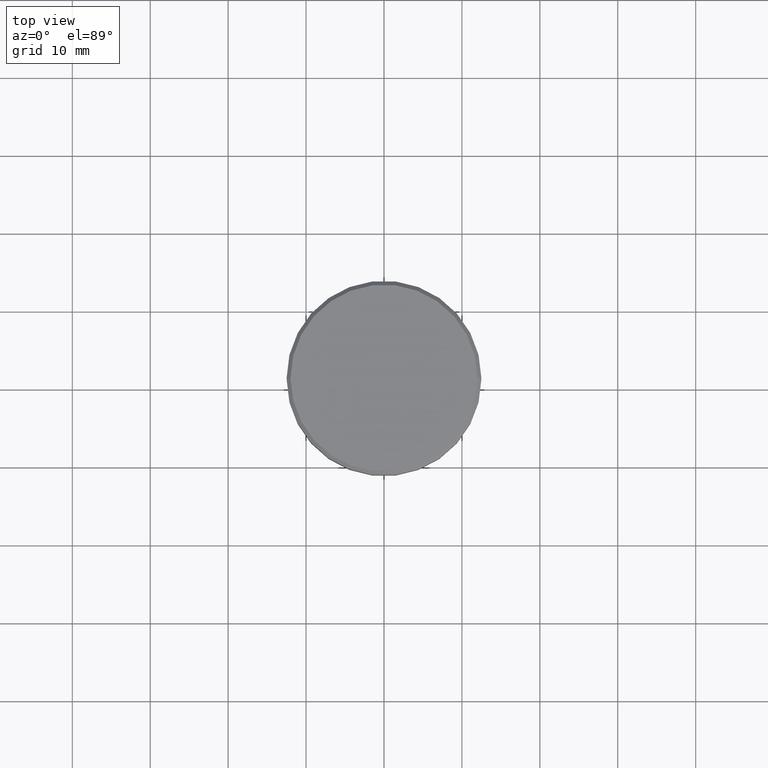
[diagram: clean part render]
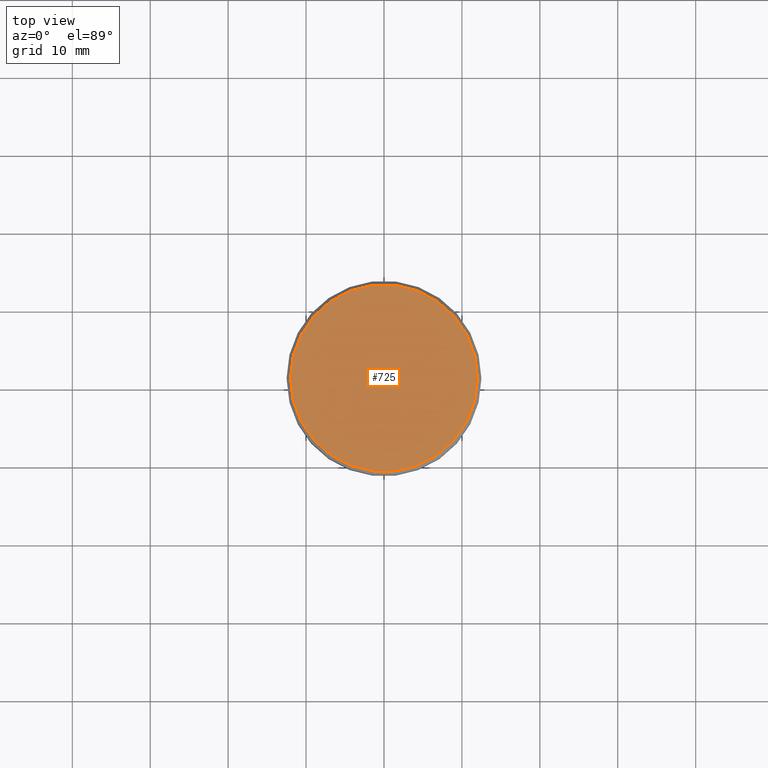
[diagram: same view with one face highlighted and labeled with its STEP entity id]
A machine part, top view. The second image highlights one B-rep face of the part: STEP entity #725.
In plain terms, the highlighted planar face has unit normal (0, -0, 1).
Its self-contained STEP definition (entity closure, byte-faithful):
#36 = ORIENTED_EDGE ( 'NONE', *, *, #161, .T. ) ;
#141 = AXIS2_PLACEMENT_3D ( 'NONE', #521, #417, #691 ) ;
#161 = EDGE_CURVE ( 'NONE', #206, #631, #938, .T. ) ;
#189 = CARTESIAN_POINT ( 'NONE',  ( 11.99999999999999645, 1.500192328955507537E-15, 0.000000000000000000 ) ) ;
#206 = VERTEX_POINT ( 'NONE', #724 ) ;
#259 = EDGE_LOOP ( 'NONE', ( #36, #532 ) ) ;
#301 = AXIS2_PLACEMENT_3D ( 'NONE', #375, #841, #747 ) ;
#349 = EDGE_CURVE ( 'NONE', #631, #206, #523, .T. ) ;
#375 = CARTESIAN_POINT ( 'NONE',  ( 0.000000000000000000, 0.000000000000000000, 0.000000000000000000 ) ) ;
#417 = DIRECTION ( 'NONE',  ( -0.000000000000000000, -0.000000000000000000, 1.000000000000000000 ) ) ;
#422 = PLANE ( 'NONE',  #1062 ) ;
#496 = FACE_OUTER_BOUND ( 'NONE', #259, .T. ) ;
#521 = CARTESIAN_POINT ( 'NONE',  ( 0.000000000000000000, 0.000000000000000000, 0.000000000000000000 ) ) ;
#523 = CIRCLE ( 'NONE', #141, 11.99999999999999645 ) ;
#532 = ORIENTED_EDGE ( 'NONE', *, *, #349, .T. ) ;
#631 = VERTEX_POINT ( 'NONE', #189 ) ;
#691 = DIRECTION ( 'NONE',  ( 1.000000000000000000, 0.000000000000000000, 0.000000000000000000 ) ) ;
#724 = CARTESIAN_POINT ( 'NONE',  ( -11.99999999999999645, 0.000000000000000000, 0.000000000000000000 ) ) ;
#725 = ADVANCED_FACE ( 'NONE', ( #496 ), #422, .T. ) ;
#747 = DIRECTION ( 'NONE',  ( 1.000000000000000000, 0.000000000000000000, 0.000000000000000000 ) ) ;
#841 = DIRECTION ( 'NONE',  ( -0.000000000000000000, -0.000000000000000000, 1.000000000000000000 ) ) ;
#865 = DIRECTION ( 'NONE',  ( 1.000000000000000000, 0.000000000000000000, 0.000000000000000000 ) ) ;
#938 = CIRCLE ( 'NONE', #301, 11.99999999999999645 ) ;
#973 = DIRECTION ( 'NONE',  ( 0.000000000000000000, -0.000000000000000000, 1.000000000000000000 ) ) ;
#1062 = AXIS2_PLACEMENT_3D ( 'NONE', #1148, #973, #865 ) ;
#1148 = CARTESIAN_POINT ( 'NONE',  ( 0.000000000000000000, 0.000000000000000000, 0.000000000000000000 ) ) ;